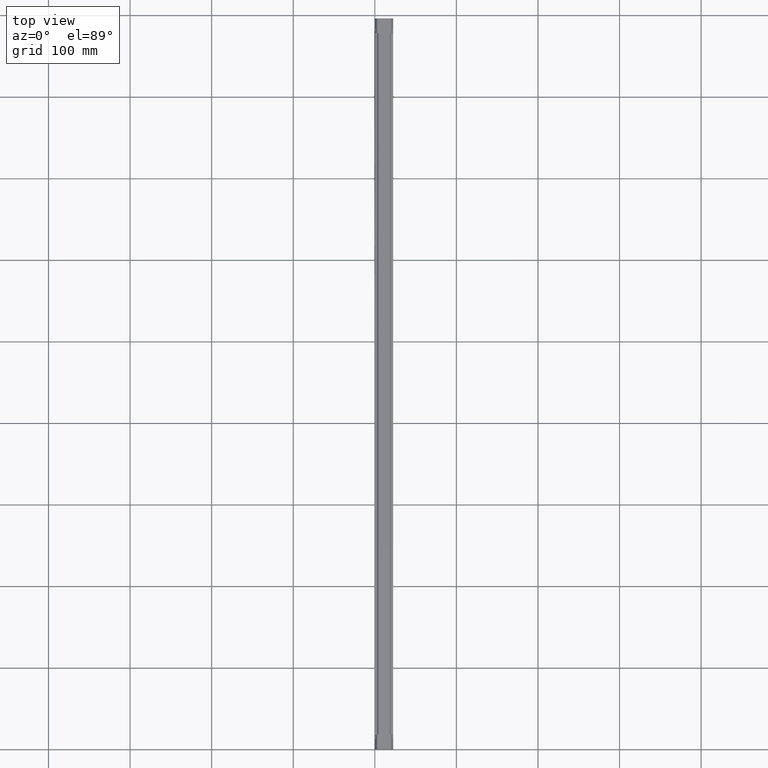
[diagram: clean part render]
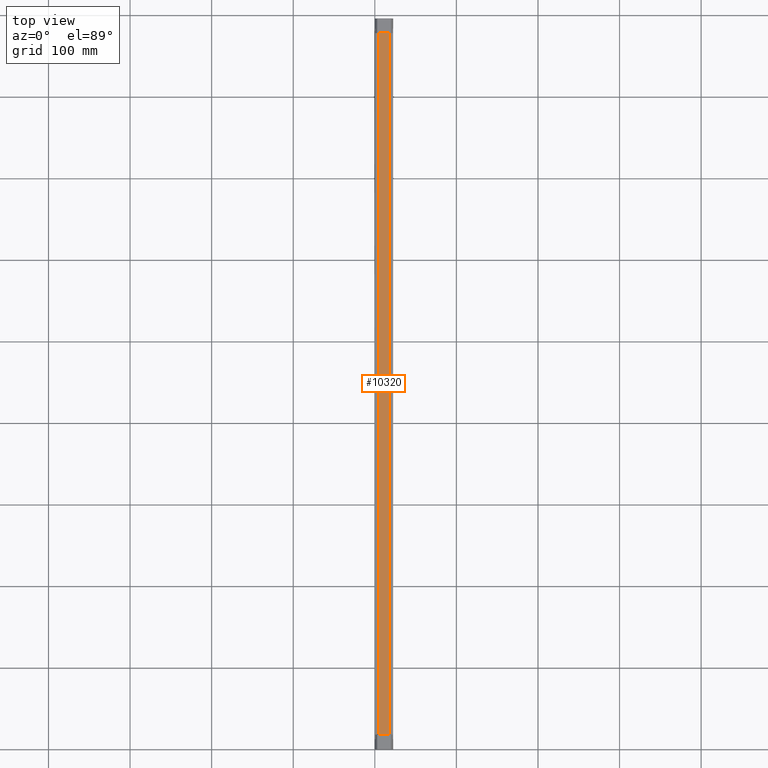
[diagram: same view with one face highlighted and labeled with its STEP entity id]
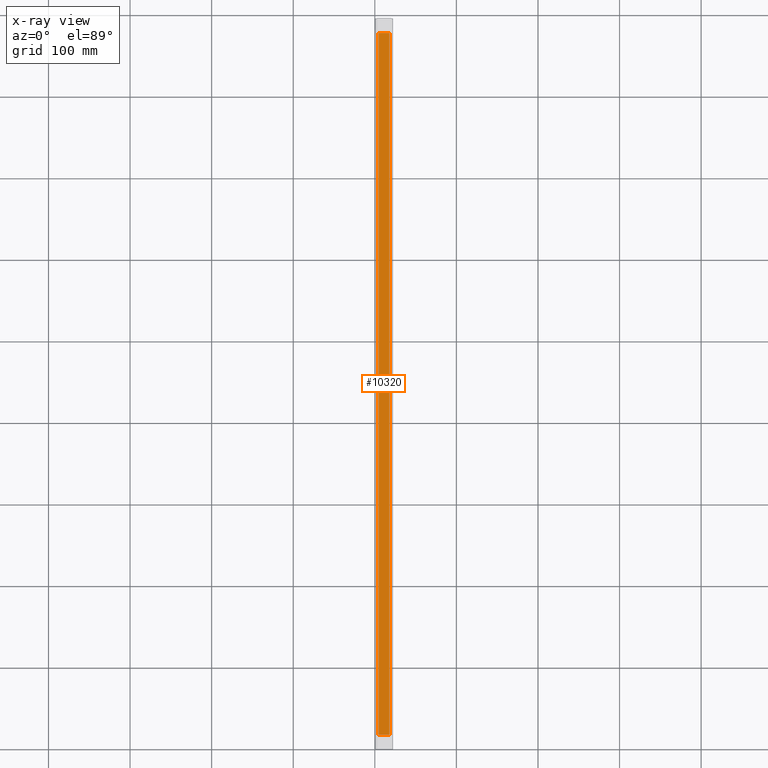
[diagram: x-ray of the same camera — body ghosted, the highlighted face saturated]
A machine part, top view. The second image highlights one B-rep face of the part: STEP entity #10320.
The next image is the same camera in x-ray: the body ghosted, the highlighted face saturated — about 0% of this face is hidden behind the body in this view.
In plain terms, the highlighted planar face has unit normal (0, 0, 1).
Its self-contained STEP definition (entity closure, byte-faithful):
#5700=CARTESIAN_POINT('',(18.,6.63400331624879,-24.8));
#5710=VERTEX_POINT('',#5700);
#6100=CARTESIAN_POINT('',(18.,-6.63400331624879,-24.8));
#6110=VERTEX_POINT('',#6100);
#6140=CARTESIAN_POINT('',(18.0000000000001,0.,-24.8));
#6150=DIRECTION('',(0.,-1.,0.));
#6160=VECTOR('',#6150,1.);
#6170=LINE('',#6140,#6160);
#6180=EDGE_CURVE('',#5710,#6110,#6170,.T.);
#9640=CARTESIAN_POINT('',(98.,6.63400331624879,-24.8));
#9650=DIRECTION('',(-1.,0.,0.));
#9660=VECTOR('',#9650,1.);
#9670=LINE('',#9640,#9660);
#9680=CARTESIAN_POINT('',(878.,6.63400331624879,-24.8));
#9690=VERTEX_POINT('',#9680);
#9700=EDGE_CURVE('',#9690,#5710,#9670,.T.);
#10090=CARTESIAN_POINT('',(98.,6.3,-24.8));
#10100=DIRECTION('',(0.,0.,-1.));
#10110=DIRECTION('',(-1.,0.,0.));
#10120=AXIS2_PLACEMENT_3D('',#10090,#10100,#10110);
#10130=PLANE('',#10120);
#10140=CARTESIAN_POINT('',(98.,-6.63400331624879,-24.8));
#10150=DIRECTION('',(-1.,0.,0.));
#10160=VECTOR('',#10150,1.);
#10170=LINE('',#10140,#10160);
#10180=CARTESIAN_POINT('',(878.,-6.63400331624879,-24.8));
#10190=VERTEX_POINT('',#10180);
#10200=EDGE_CURVE('',#10190,#6110,#10170,.T.);
#10210=ORIENTED_EDGE('',*,*,#10200,.T.);
#10220=CARTESIAN_POINT('',(878.,0.,-24.8));
#10230=DIRECTION('',(0.,1.,0.));
#10240=VECTOR('',#10230,1.);
#10250=LINE('',#10220,#10240);
#10260=EDGE_CURVE('',#10190,#9690,#10250,.T.);
#10270=ORIENTED_EDGE('',*,*,#10260,.F.);
#10280=ORIENTED_EDGE('',*,*,#9700,.F.);
#10290=ORIENTED_EDGE('',*,*,#6180,.F.);
#10300=EDGE_LOOP('',(#10290,#10280,#10270,#10210));
#10310=FACE_OUTER_BOUND('',#10300,.T.);
#10320=ADVANCED_FACE('',(#10310),#10130,.T.);